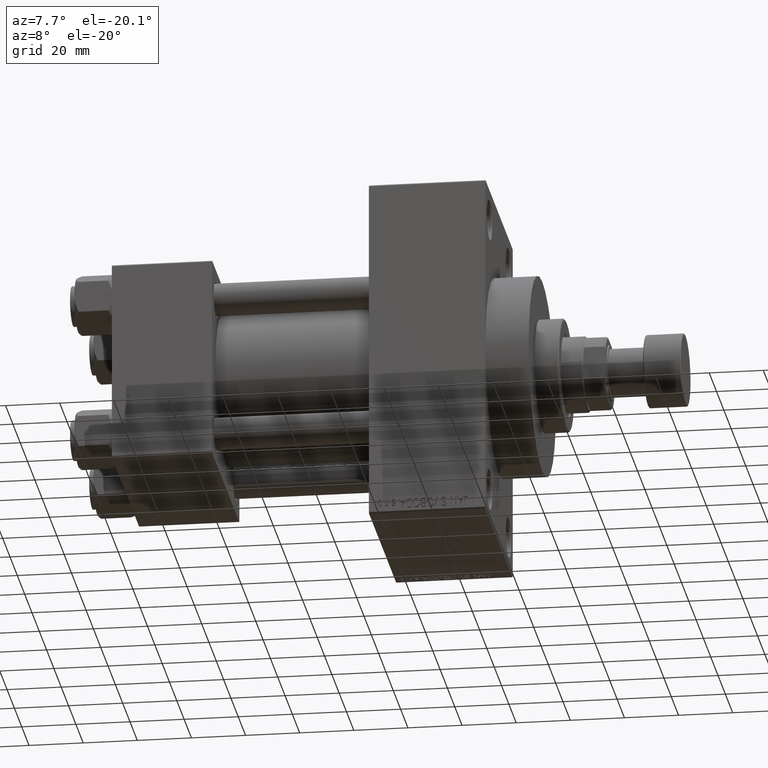
[diagram: clean part render]
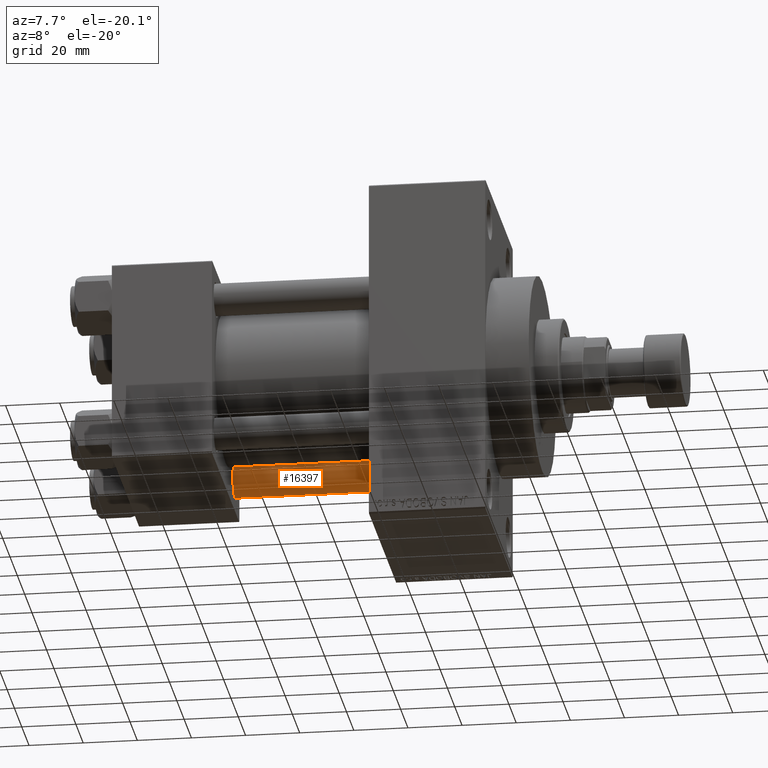
[diagram: same view with one face highlighted and labeled with its STEP entity id]
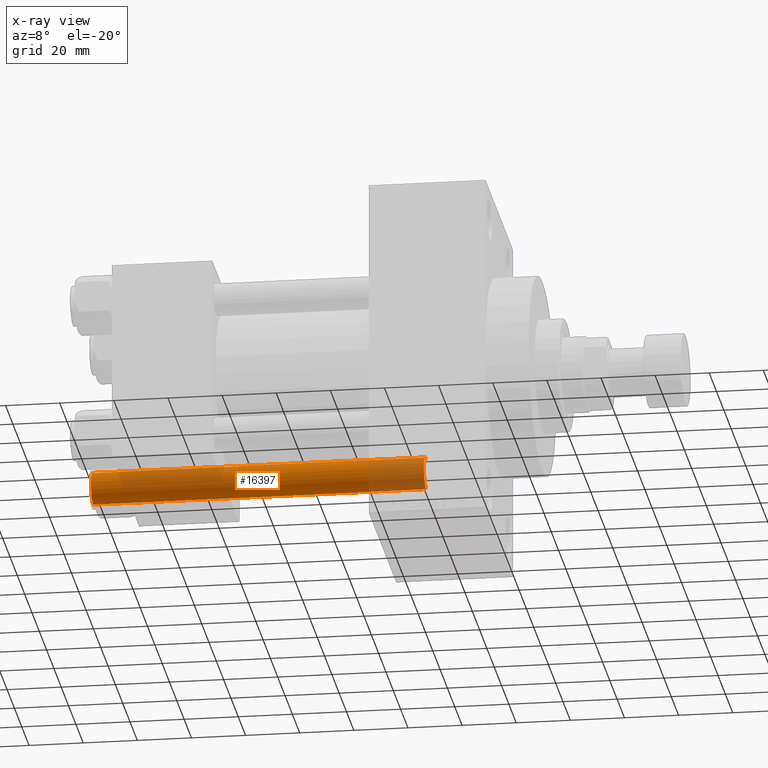
[diagram: x-ray of the same camera — body ghosted, the highlighted face saturated]
A machine part, auxiliary view. The second image highlights one B-rep face of the part: STEP entity #16397.
The next image is the same camera in x-ray: the body ghosted, the highlighted face saturated — about 32% of this face is hidden behind the body in this view.
In plain terms, the highlighted cylindrical surface (edge-blend (fillet) strip) has radius 6 mm, axis along (-1, -0, 0).
Its self-contained STEP definition (entity closure, byte-faithful):
#650 = EDGE_CURVE ( 'NONE', #3738, #39723, #41885, .T. ) ;
#2536 = EDGE_CURVE ( 'NONE', #15198, #3738, #8805, .T. ) ;
#3480 = EDGE_LOOP ( 'NONE', ( #28783, #46273, #38898, #43611 ) ) ;
#3738 = VERTEX_POINT ( 'NONE', #20683 ) ;
#4335 = CARTESIAN_POINT ( 'NONE',  ( 0.000000000000000000, 0.000000000000000000, 0.4999999999999865663 ) ) ;
#4738 = LINE ( 'NONE', #25723, #17305 ) ;
#8805 = CIRCLE ( 'NONE', #30357, 6.000000000000000888 ) ;
#12904 = CARTESIAN_POINT ( 'NONE',  ( 6.000000000000000888, 7.347880794884120722E-16, 123.5000000000000426 ) ) ;
#13786 = CARTESIAN_POINT ( 'NONE',  ( 0.000000000000000000, 0.000000000000000000, 124.0000000000000000 ) ) ;
#14633 = DIRECTION ( 'NONE',  ( -0.000000000000000000, -0.000000000000000000, -1.000000000000000000 ) ) ;
#14759 = DIRECTION ( 'NONE',  ( 1.000000000000000000, 0.000000000000000000, 0.000000000000000000 ) ) ;
#14848 = CIRCLE ( 'NONE', #46384, 6.000000000000000888 ) ;
#15198 = VERTEX_POINT ( 'NONE', #12904 ) ;
#15844 = AXIS2_PLACEMENT_3D ( 'NONE', #13786, #42704, #24410 ) ;
#15886 = DIRECTION ( 'NONE',  ( -0.000000000000000000, -0.000000000000000000, 1.000000000000000000 ) ) ;
#16397 = ADVANCED_FACE ( 'NONE', ( #28021 ), #28507, .T. ) ;
#17305 = VECTOR ( 'NONE', #14633, 1000.000000000000000 ) ;
#18377 = CARTESIAN_POINT ( 'NONE',  ( 0.000000000000000000, 0.000000000000000000, 123.5000000000000426 ) ) ;
#19967 = DIRECTION ( 'NONE',  ( -0.000000000000000000, -0.000000000000000000, -1.000000000000000000 ) ) ;
#20683 = CARTESIAN_POINT ( 'NONE',  ( -6.000000000000000888, 0.000000000000000000, 123.5000000000000426 ) ) ;
#21041 = VECTOR ( 'NONE', #19967, 1000.000000000000000 ) ;
#24410 = DIRECTION ( 'NONE',  ( -1.000000000000000000, 0.000000000000000000, 0.000000000000000000 ) ) ;
#25723 = CARTESIAN_POINT ( 'NONE',  ( 6.000000000000000888, 7.347880794884120722E-16, 124.0000000000000000 ) ) ;
#28021 = FACE_OUTER_BOUND ( 'NONE', #3480, .T. ) ;
#28507 = CYLINDRICAL_SURFACE ( 'NONE', #15844, 6.000000000000000888 ) ;
#28783 = ORIENTED_EDGE ( 'NONE', *, *, #43512, .F. ) ;
#30357 = AXIS2_PLACEMENT_3D ( 'NONE', #18377, #33091, #14759 ) ;
#30808 = VERTEX_POINT ( 'NONE', #35596 ) ;
#33091 = DIRECTION ( 'NONE',  ( 0.000000000000000000, 0.000000000000000000, -1.000000000000000000 ) ) ;
#34201 = DIRECTION ( 'NONE',  ( 1.000000000000000000, 0.000000000000000000, 0.000000000000000000 ) ) ;
#35596 = CARTESIAN_POINT ( 'NONE',  ( 6.000000000000000888, 7.347880794884120722E-16, 0.4999999999999865663 ) ) ;
#38086 = EDGE_CURVE ( 'NONE', #39723, #30808, #14848, .T. ) ;
#38898 = ORIENTED_EDGE ( 'NONE', *, *, #650, .T. ) ;
#39723 = VERTEX_POINT ( 'NONE', #43810 ) ;
#41885 = LINE ( 'NONE', #45281, #21041 ) ;
#42704 = DIRECTION ( 'NONE',  ( -0.000000000000000000, -0.000000000000000000, -1.000000000000000000 ) ) ;
#43512 = EDGE_CURVE ( 'NONE', #15198, #30808, #4738, .T. ) ;
#43611 = ORIENTED_EDGE ( 'NONE', *, *, #38086, .T. ) ;
#43810 = CARTESIAN_POINT ( 'NONE',  ( -6.000000000000000888, 0.000000000000000000, 0.4999999999999865663 ) ) ;
#45281 = CARTESIAN_POINT ( 'NONE',  ( -6.000000000000000888, 0.000000000000000000, 124.0000000000000000 ) ) ;
#46273 = ORIENTED_EDGE ( 'NONE', *, *, #2536, .T. ) ;
#46384 = AXIS2_PLACEMENT_3D ( 'NONE', #4335, #15886, #34201 ) ;